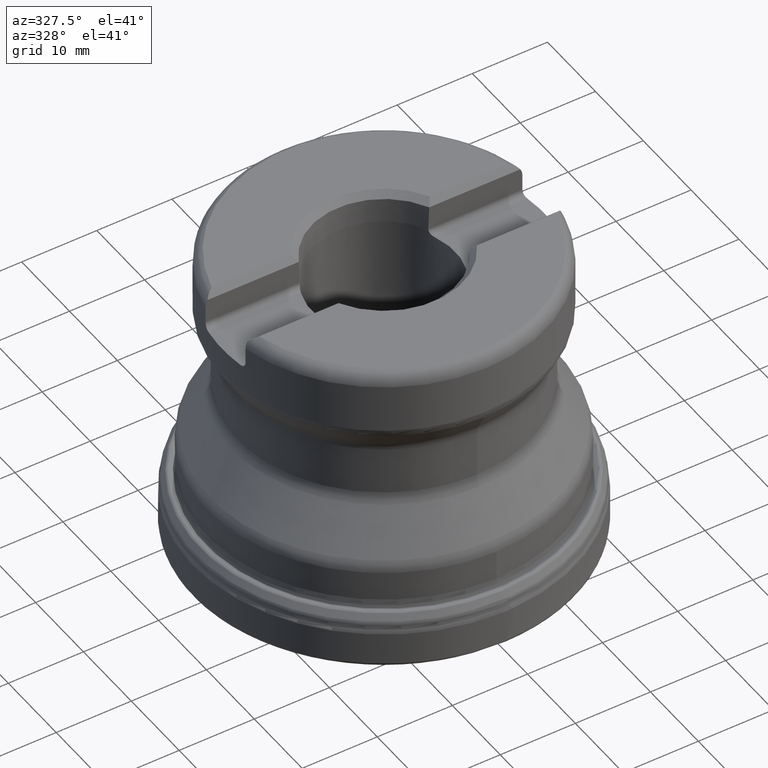
[diagram: clean part render]
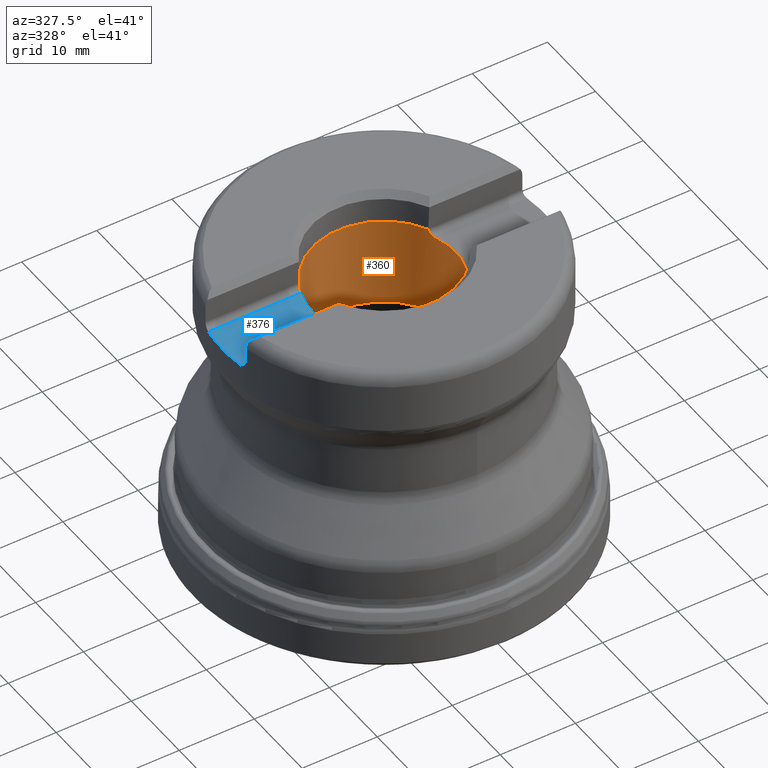
[diagram: same view with the hole feature highlighted: cylindrical wall and planar end face, labeled with their STEP entity ids]
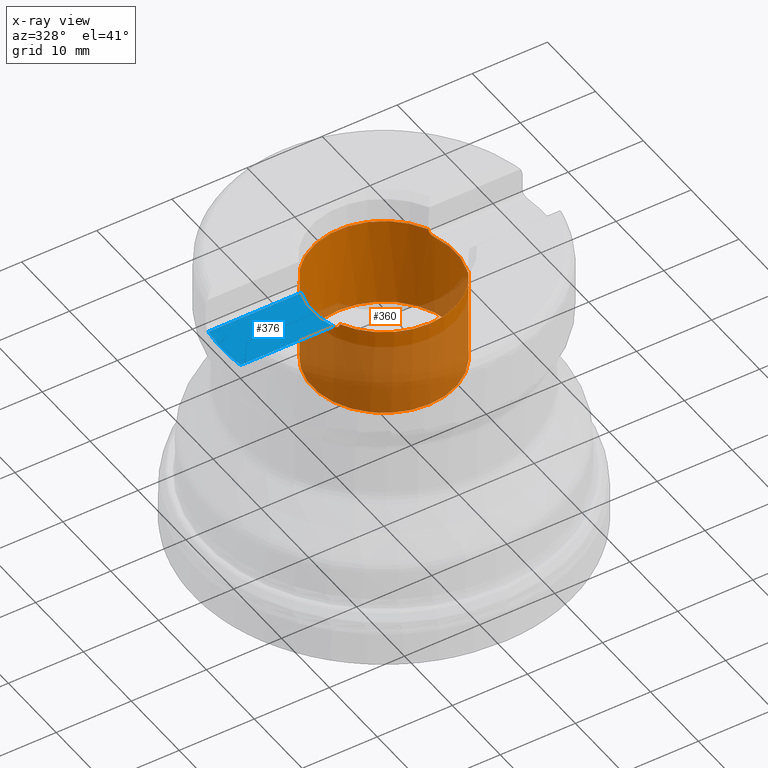
[diagram: x-ray of the same camera — body ghosted, the hole faces saturated]
A machine part, auxiliary view. The highlighted faces form one hole feature of diameter 19.05 mm: the cylindrical wall (entity #360, orange) and its adjacent planar end face (entity #376, blue) — they share a circular edge in the B-rep.
The next image is the same camera in x-ray (body ghosted, the hole faces saturated) — the bore reads through the body.
Wall:
#149=CYLINDRICAL_SURFACE('',#1210,9.525);
#181=FACE_BOUND('',#487,.T.);
#182=FACE_BOUND('',#488,.T.);
#360=ADVANCED_FACE('',(#181,#182),#149,.F.);
#487=EDGE_LOOP('',(#664,#665,#666,#667,#668,#669,#670,#671));
#488=EDGE_LOOP('',(#672));
#664=ORIENTED_EDGE('',*,*,#934,.F.);
#665=ORIENTED_EDGE('',*,*,#975,.T.);
#666=ORIENTED_EDGE('',*,*,#976,.T.);
#667=ORIENTED_EDGE('',*,*,#977,.T.);
#668=ORIENTED_EDGE('',*,*,#941,.F.);
#669=ORIENTED_EDGE('',*,*,#978,.T.);
#670=ORIENTED_EDGE('',*,*,#979,.T.);
#671=ORIENTED_EDGE('',*,*,#980,.T.);
#672=ORIENTED_EDGE('',*,*,#981,.T.);
#836=VERTEX_POINT('',#1894);
#837=VERTEX_POINT('',#1896);
#842=VERTEX_POINT('',#1920);
#843=VERTEX_POINT('',#1922);
#870=VERTEX_POINT('',#2079);
#871=VERTEX_POINT('',#2081);
#872=VERTEX_POINT('',#2114);
#873=VERTEX_POINT('',#2116);
#874=VERTEX_POINT('',#2134);
#934=EDGE_CURVE('',#836,#837,#1032,.T.);
#941=EDGE_CURVE('',#842,#843,#1034,.T.);
#975=EDGE_CURVE('',#836,#870,#1133,.T.);
#976=EDGE_CURVE('',#870,#871,#1056,.T.);
#977=EDGE_CURVE('',#871,#843,#1134,.T.);
#978=EDGE_CURVE('',#842,#872,#1135,.T.);
#979=EDGE_CURVE('',#872,#873,#1057,.T.);
#980=EDGE_CURVE('',#873,#837,#1136,.T.);
#981=EDGE_CURVE('',#874,#874,#1058,.T.);
#1032=CIRCLE('',#1165,9.525);
#1034=CIRCLE('',#1170,9.525);
#1056=CIRCLE('',#1207,9.525);
#1057=CIRCLE('',#1208,9.525);
#1058=CIRCLE('',#1209,9.525);
#1133=B_SPLINE_CURVE_WITH_KNOTS('',3,(#2063,#2064,#2065,#2066,#2067,#2068,
#2069,#2070,#2071,#2072,#2073,#2074,#2075,#2076,#2077,#2078),
 .UNSPECIFIED.,.F.,.F.,(4,3,3,3,3,4),(0.,0.0449708200580502,0.266760857830187,
0.508329029404616,0.75426019539694,1.),.UNSPECIFIED.);
#1134=B_SPLINE_CURVE_WITH_KNOTS('',3,(#2082,#2083,#2084,#2085,#2086,#2087,
#2088,#2089,#2090,#2091,#2092,#2093,#2094,#2095,#2096,#2097),
 .UNSPECIFIED.,.F.,.F.,(4,3,3,3,3,4),(0.,0.154994526328217,0.38644226448146,
0.597973450863603,0.798620534151843,1.),.UNSPECIFIED.);
#1135=B_SPLINE_CURVE_WITH_KNOTS('',3,(#2098,#2099,#2100,#2101,#2102,#2103,
#2104,#2105,#2106,#2107,#2108,#2109,#2110,#2111,#2112,#2113),
 .UNSPECIFIED.,.F.,.F.,(4,3,3,3,3,4),(0.,0.182423398369835,0.418179845529783,
0.664710030979067,0.906916599090556,1.),.UNSPECIFIED.);
#1136=B_SPLINE_CURVE_WITH_KNOTS('',3,(#2117,#2118,#2119,#2120,#2121,#2122,
#2123,#2124,#2125,#2126,#2127,#2128,#2129,#2130,#2131,#2132),
 .UNSPECIFIED.,.F.,.F.,(4,3,3,3,3,4),(0.,0.154125161148393,0.385811019184606,
0.597559834746224,0.79841334934536,1.),.UNSPECIFIED.);
#1165=AXIS2_PLACEMENT_3D('',#1895,#1305,#1306);
#1170=AXIS2_PLACEMENT_3D('',#1921,#1315,#1316);
#1207=AXIS2_PLACEMENT_3D('',#2080,#1395,#1396);
#1208=AXIS2_PLACEMENT_3D('',#2115,#1397,#1398);
#1209=AXIS2_PLACEMENT_3D('',#2133,#1399,#1400);
#1210=AXIS2_PLACEMENT_3D('',#2135,#1401,#1402);
#1305=DIRECTION('',(0.,-1.17145536458252E-15,-1.));
#1306=DIRECTION('',(0.,-1.,1.45698559662094E-15));
#1315=DIRECTION('',(0.,-1.17145536458252E-15,-1.));
#1316=DIRECTION('',(0.,-1.,1.45698559662094E-15));
#1395=DIRECTION('',(0.,1.17145536458252E-15,1.));
#1396=DIRECTION('',(0.,1.,-1.45698559662094E-15));
#1397=DIRECTION('',(0.,1.17145536458252E-15,1.));
#1398=DIRECTION('',(0.,1.,-1.45698559662094E-15));
#1399=DIRECTION('',(0.,-1.17145536458252E-15,-1.));
#1400=DIRECTION('',(0.,-1.,1.09273919746571E-15));
#1401=DIRECTION('',(0.,1.17145536458252E-15,1.));
#1402=DIRECTION('',(0.,-1.,1.45698559662094E-15));
#1894=CARTESIAN_POINT('',(8.56201245005217,-4.17343597113352,35.878));
#1895=CARTESIAN_POINT('',(0.,4.20294755704918E-14,35.878));
#1896=CARTESIAN_POINT('',(-8.56201245005217,-4.17343597113352,35.878));
#1920=CARTESIAN_POINT('',(-8.56201245005217,4.17343597113361,35.878));
#1921=CARTESIAN_POINT('',(0.,4.20294755704918E-14,35.878));
#1922=CARTESIAN_POINT('',(8.56201245005217,4.17343597113361,35.878));
#2063=CARTESIAN_POINT('',(8.56201245005217,-4.17343597113352,35.878));
#2064=CARTESIAN_POINT('',(8.56259478694177,-4.17224127790392,35.8589222790203));
#2065=CARTESIAN_POINT('',(8.56351096951703,-4.17036124778173,35.8398826476298));
#2066=CARTESIAN_POINT('',(8.56475338016902,-4.16780812140903,35.8209706459525));
#2067=CARTESIAN_POINT('',(8.57077609551436,-4.15543157476648,35.7292927433758));
#2068=CARTESIAN_POINT('',(8.5848906471496,-4.12642942167599,35.6389426139664));
#2069=CARTESIAN_POINT('',(8.60473861044074,-4.08461729492373,35.5586176848507));
#2070=CARTESIAN_POINT('',(8.62634322493626,-4.03910457069756,35.4711835686913));
#2071=CARTESIAN_POINT('',(8.65535796914865,-3.97700458631287,35.3925212932938));
#2072=CARTESIAN_POINT('',(8.68754375521946,-3.9054075973126,35.3291112117321));
#2073=CARTESIAN_POINT('',(8.72035233974468,-3.83242519880295,35.2644741382087));
#2074=CARTESIAN_POINT('',(8.75742974162443,-3.74733011078264,35.2134651939416));
#2075=CARTESIAN_POINT('',(8.79472698709914,-3.65764982227521,35.179595645411));
#2076=CARTESIAN_POINT('',(8.83201162308596,-3.56799985296417,35.1457375475293));
#2077=CARTESIAN_POINT('',(8.87058452639905,-3.47115669365122,35.128));
#2078=CARTESIAN_POINT('',(8.90701970358211,-3.37499999999996,35.128));
#2079=CARTESIAN_POINT('',(8.90701970358211,-3.37499999999996,35.128));
#2080=CARTESIAN_POINT('',(0.,4.11508840470549E-14,35.128));
#2081=CARTESIAN_POINT('',(8.90701970358378,3.37499999999932,35.1279999999863));
#2082=CARTESIAN_POINT('',(8.90701970358378,3.37499999999932,35.1279999999863));
#2083=CARTESIAN_POINT('',(8.88401691309611,3.43570705425448,35.1279999999862));
#2084=CARTESIAN_POINT('',(8.86025331894011,3.49650752200319,35.1349747331928));
#2085=CARTESIAN_POINT('',(8.83656106053045,3.55539218983185,35.1486036580483));
#2086=CARTESIAN_POINT('',(8.80119557648956,3.64328945755276,35.1689475828924));
#2087=CARTESIAN_POINT('',(8.76522535736257,3.72873236388561,35.2047107514579));
#2088=CARTESIAN_POINT('',(8.73180979069534,3.80540704512898,35.2536486260833));
#2089=CARTESIAN_POINT('',(8.70123020141515,3.87557435020454,35.2984331458609));
#2090=CARTESIAN_POINT('',(8.67209298562226,3.94004518526089,35.3553152014566));
#2091=CARTESIAN_POINT('',(8.64718765838693,3.9939667751048,35.421166564524));
#2092=CARTESIAN_POINT('',(8.62356787185393,4.04510508899238,35.4836188713683));
#2093=CARTESIAN_POINT('',(8.60324389034894,4.08790525492264,35.5556769636327));
#2094=CARTESIAN_POINT('',(8.58858216509959,4.1184804714037,35.632641254334));
#2095=CARTESIAN_POINT('',(8.57388970653518,4.14911977841605,35.7097668744664));
#2096=CARTESIAN_POINT('',(8.564578808317,4.16817095890705,35.7939244969971));
#2097=CARTESIAN_POINT('',(8.56201245005217,4.17343597113361,35.878));
#2098=CARTESIAN_POINT('',(-8.56201245005217,4.17343597113361,35.878));
#2099=CARTESIAN_POINT('',(-8.56434591919886,4.16864874257088,35.8015540902696));
#2100=CARTESIAN_POINT('',(-8.57221985974299,4.15252898415604,35.7251056615514));
#2101=CARTESIAN_POINT('',(-8.58466598255063,4.12663724696495,35.6540630565714));
#2102=CARTESIAN_POINT('',(-8.60065458063607,4.09337607912332,35.5627999639983));
#2103=CARTESIAN_POINT('',(-8.62469235814658,4.04288140253332,35.4776395450139));
#2104=CARTESIAN_POINT('',(-8.6529905092489,3.98137918903096,35.406172174841));
#2105=CARTESIAN_POINT('',(-8.68260450437867,3.91701716606543,35.3313816224623));
#2106=CARTESIAN_POINT('',(-8.71776480549342,3.83858485278458,35.2689270744784));
#2107=CARTESIAN_POINT('',(-8.75416602176461,3.75369181784843,35.2233067993129));
#2108=CARTESIAN_POINT('',(-8.78997986043372,3.67016863459313,35.1784226624025));
#2109=CARTESIAN_POINT('',(-8.82801612126549,3.57796909678977,35.1484331887989));
#2110=CARTESIAN_POINT('',(-8.86479208555795,3.48440615884964,35.1355163772003));
#2111=CARTESIAN_POINT('',(-8.87900470153886,3.44824737599862,35.1305244840853));
#2112=CARTESIAN_POINT('',(-8.89314018017739,3.41162968546439,35.128));
#2113=CARTESIAN_POINT('',(-8.90701970358211,3.37500000000004,35.128));
#2114=CARTESIAN_POINT('',(-8.90701970358211,3.37500000000004,35.128));
#2115=CARTESIAN_POINT('',(0.,4.11508840470549E-14,35.128));
#2116=CARTESIAN_POINT('',(-8.90701970358211,-3.37499999999996,35.128));
#2117=CARTESIAN_POINT('',(-8.90701970358211,-3.37499999999996,35.128));
#2118=CARTESIAN_POINT('',(-8.88401691309475,-3.43570705425427,35.128));
#2119=CARTESIAN_POINT('',(-8.86025331893978,-3.49650752200393,35.134974733193));
#2120=CARTESIAN_POINT('',(-8.83656106053045,-3.55539218983177,35.1486036580483));
#2121=CARTESIAN_POINT('',(-8.80119557648956,-3.64328945755268,35.1689475828924));
#2122=CARTESIAN_POINT('',(-8.76522535736257,-3.72873236388553,35.2047107514579));
#2123=CARTESIAN_POINT('',(-8.73180979069534,-3.8054070451289,35.2536486260833));
#2124=CARTESIAN_POINT('',(-8.70123020141515,-3.87557435020445,35.2984331458609));
#2125=CARTESIAN_POINT('',(-8.67209298562226,-3.94004518526081,35.3553152014566));
#2126=CARTESIAN_POINT('',(-8.64718765838693,-3.99396677510472,35.421166564524));
#2127=CARTESIAN_POINT('',(-8.62356787185394,-4.04510508899229,35.4836188713683));
#2128=CARTESIAN_POINT('',(-8.60324389034894,-4.08790525492256,35.5556769636327));
#2129=CARTESIAN_POINT('',(-8.58858216509959,-4.11848047140361,35.632641254334));
#2130=CARTESIAN_POINT('',(-8.57388970653518,-4.14911977841596,35.7097668744664));
#2131=CARTESIAN_POINT('',(-8.56457880831701,-4.16817095890696,35.7939244969971));
#2132=CARTESIAN_POINT('',(-8.56201245005217,-4.17343597113352,35.878));
#2133=CARTESIAN_POINT('',(0.,2.79720111955015E-14,23.878));
#2134=CARTESIAN_POINT('',(0.,-9.52499999999997,23.878));
#2135=CARTESIAN_POINT('',(0.,4.69495881017384E-14,40.078));
End face:
#281=PLANE('',#1236);
#304=LINE('',#2169,#329);
#305=LINE('',#2172,#330);
#329=VECTOR('',#1447,1.);
#330=VECTOR('',#1452,1.);
#376=ADVANCED_FACE('',(#444),#281,.F.);
#444=FACE_OUTER_BOUND('',#514,.T.);
#514=EDGE_LOOP('',(#717,#718,#719,#720));
#717=ORIENTED_EDGE('',*,*,#969,.T.);
#718=ORIENTED_EDGE('',*,*,#994,.T.);
#719=ORIENTED_EDGE('',*,*,#979,.F.);
#720=ORIENTED_EDGE('',*,*,#995,.T.);
#865=VERTEX_POINT('',#2004);
#866=VERTEX_POINT('',#2006);
#872=VERTEX_POINT('',#2114);
#873=VERTEX_POINT('',#2116);
#969=EDGE_CURVE('',#866,#865,#1053,.T.);
#979=EDGE_CURVE('',#872,#873,#1057,.T.);
#994=EDGE_CURVE('',#865,#873,#304,.T.);
#995=EDGE_CURVE('',#872,#866,#305,.T.);
#1053=CIRCLE('',#1201,21.5011);
#1057=CIRCLE('',#1208,9.525);
#1201=AXIS2_PLACEMENT_3D('',#2005,#1383,#1384);
#1208=AXIS2_PLACEMENT_3D('',#2115,#1397,#1398);
#1236=AXIS2_PLACEMENT_3D('',#2175,#1457,#1458);
#1383=DIRECTION('',(0.,1.17145536458252E-15,1.));
#1384=DIRECTION('',(0.,1.,-1.2908909597941E-15));
#1397=DIRECTION('',(0.,1.17145536458252E-15,1.));
#1398=DIRECTION('',(0.,1.,-1.45698559662094E-15));
#1447=DIRECTION('',(1.,0.,0.));
#1452=DIRECTION('',(-1.,0.,0.));
#1457=DIRECTION('',(0.,-1.17145536458252E-15,-1.));
#1458=DIRECTION('',(0.,1.,-1.17267306976032E-15));
#2004=CARTESIAN_POINT('',(-21.2345632450964,-3.37499999999996,35.128));
#2005=CARTESIAN_POINT('',(0.,4.11508840470549E-14,35.128));
#2006=CARTESIAN_POINT('',(-21.2345632450964,3.37500000000004,35.128));
#2114=CARTESIAN_POINT('',(-8.90701970358211,3.37500000000004,35.128));
#2115=CARTESIAN_POINT('',(0.,4.11508840470549E-14,35.128));
#2116=CARTESIAN_POINT('',(-8.90701970358211,-3.37499999999996,35.128));
#2169=CARTESIAN_POINT('',(30.,-3.37499999999996,35.128));
#2172=CARTESIAN_POINT('',(30.,3.37500000000004,35.128));
#2175=CARTESIAN_POINT('',(30.,4.17500000000004,35.128));